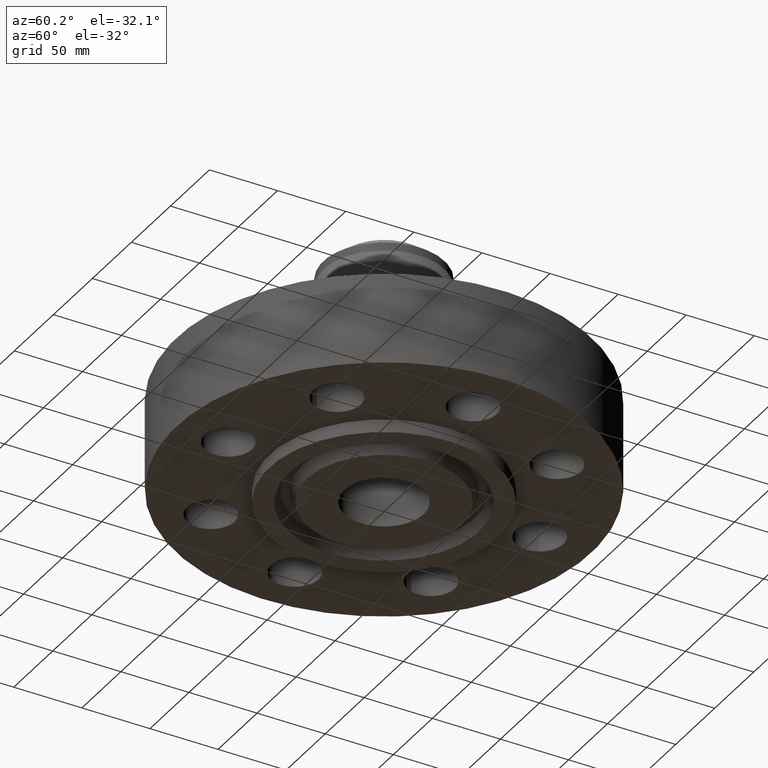
[diagram: clean part render]
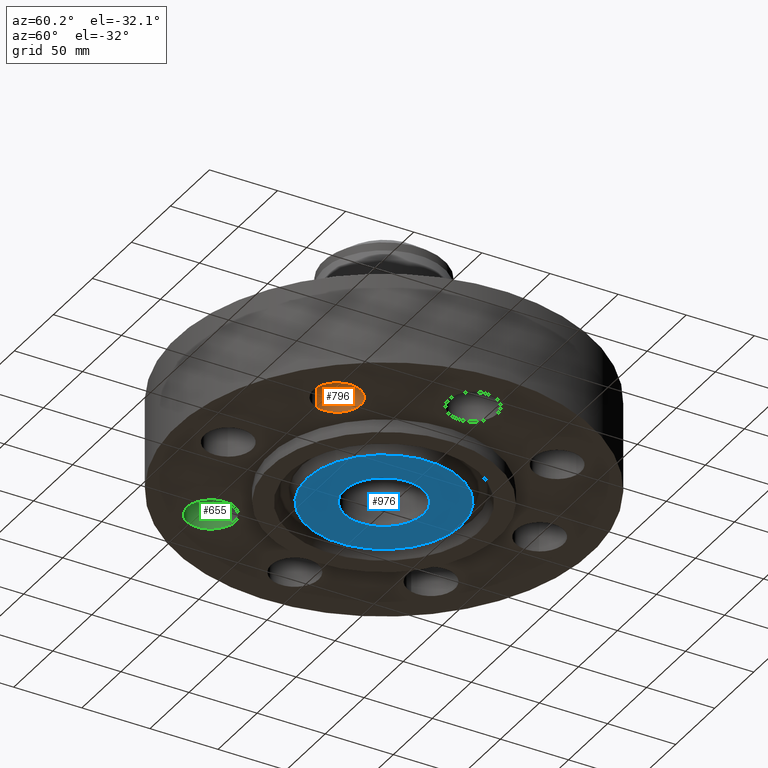
[diagram: same view with three faces highlighted in distinct colors, each labeled with its STEP entity id]
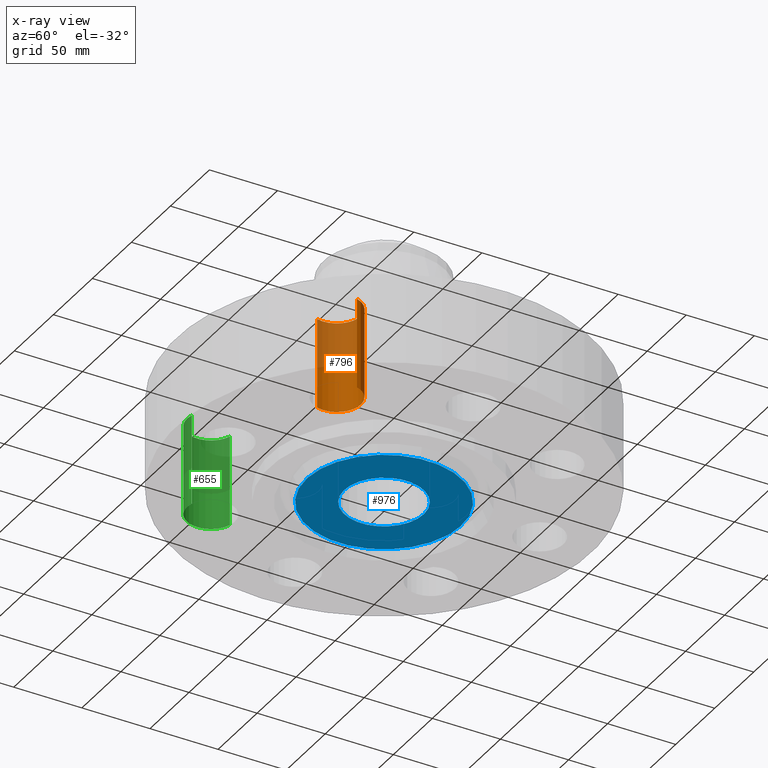
[diagram: x-ray of the same camera — body ghosted, the three highlighted faces saturated]
A machine part, auxiliary view with three faces highlighted in distinct colors.
The next image is the same camera in x-ray (body ghosted, the three faces saturated) — at least one of them is partly hidden behind the body in this view.
Their STEP definitions:

[orange] entity #796 — the highlighted cylindrical surface (edge-blend (fillet) strip) has radius 17.526 mm, axis along (-0, 0, -1).
#545=AXIS2_PLACEMENT_3D('Circle Axis2P3D',#543,#544,$) ;
#757=AXIS2_PLACEMENT_3D('Cylinder Axis2P3D',#754,#755,#756) ;
#787=AXIS2_PLACEMENT_3D('Circle Axis2P3D',#785,#786,$) ;
#538=CARTESIAN_POINT('Vertex',(3.84406976004,-2.98771823886,0.)) ;
#540=CARTESIAN_POINT('Vertex',(2.51989127066,-3.37624279184,0.)) ;
#543=CARTESIAN_POINT('Axis2P3D Location',(3.18198051535,-3.18198051535,0.)) ;
#754=CARTESIAN_POINT('Axis2P3D Location',(3.18198051535,-3.18198051535,2.61606299214)) ;
#759=CARTESIAN_POINT('Line Origine',(3.84406976004,-2.98771823886,1.31000000001)) ;
#763=CARTESIAN_POINT('Vertex',(3.84406976004,-2.98771823886,2.62000000001)) ;
#766=CARTESIAN_POINT('Line Origine',(2.51989127066,-3.37624279184,1.31000000001)) ;
#770=CARTESIAN_POINT('Vertex',(2.51989127066,-3.37624279184,2.62000000001)) ;
#785=CARTESIAN_POINT('Axis2P3D Location',(3.18198051535,-3.18198051535,2.62000000001)) ;
#544=DIRECTION('Axis2P3D Direction',(0.,0.,-0.0393700787402)) ;
#755=DIRECTION('Axis2P3D Direction',(-0.,0.,-0.0393700787402)) ;
#756=DIRECTION('Axis2P3D XDirection',(-0.0377775444876,-0.0110842335096,0.)) ;
#760=DIRECTION('Vector Direction',(0.,0.,-0.0393700787402)) ;
#767=DIRECTION('Vector Direction',(0.,0.,-0.0393700787402)) ;
#786=DIRECTION('Axis2P3D Direction',(-0.,0.,-0.0393700787402)) ;
#761=VECTOR('Line Direction',#760,0.0393700787402) ;
#768=VECTOR('Line Direction',#767,0.0393700787402) ;
#791=ORIENTED_EDGE('',*,*,#772,.F.) ;
#792=ORIENTED_EDGE('',*,*,#547,.T.) ;
#793=ORIENTED_EDGE('',*,*,#765,.T.) ;
#794=ORIENTED_EDGE('',*,*,#789,.F.) ;
#796=ADVANCED_FACE('PartBody',(#795),#758,.F.) ;
#546=CIRCLE('generated circle',#545,0.690000000003) ;
#788=CIRCLE('generated circle',#787,0.690000000003) ;
#758=CYLINDRICAL_SURFACE('generated cylinder',#757,0.690000000003) ;
#547=EDGE_CURVE('',#541,#539,#546,.T.) ;
#765=EDGE_CURVE('',#539,#764,#762,.F.) ;
#772=EDGE_CURVE('',#541,#771,#769,.F.) ;
#789=EDGE_CURVE('',#771,#764,#788,.T.) ;
#790=EDGE_LOOP('',(#791,#792,#793,#794)) ;
#795=FACE_OUTER_BOUND('',#790,.T.) ;
#762=LINE('Line',#759,#761) ;
#769=LINE('Line',#766,#768) ;
#539=VERTEX_POINT('',#538) ;
#541=VERTEX_POINT('',#540) ;
#764=VERTEX_POINT('',#763) ;
#771=VERTEX_POINT('',#770) ;

[blue] entity #976 — the highlighted planar face has unit normal (0, 0, -1).
#363=AXIS2_PLACEMENT_3D('Circle Axis2P3D',#361,#362,$) ;
#387=AXIS2_PLACEMENT_3D('Circle Axis2P3D',#385,#386,$) ;
#929=AXIS2_PLACEMENT_3D('Plane Axis2P3D',#926,#927,#928) ;
#956=AXIS2_PLACEMENT_3D('Circle Axis2P3D',#954,#955,$) ;
#965=AXIS2_PLACEMENT_3D('Circle Axis2P3D',#963,#964,$) ;
#358=CARTESIAN_POINT('Vertex',(0.551339369397,1.00921994618,-0.375000000002)) ;
#361=CARTESIAN_POINT('Axis2P3D Location',(0.,0.,-0.375000000002)) ;
#365=CARTESIAN_POINT('Vertex',(-0.551339369397,-1.00921994618,-0.375000000002)) ;
#385=CARTESIAN_POINT('Axis2P3D Location',(0.,0.,-0.375000000002)) ;
#926=CARTESIAN_POINT('Axis2P3D Location',(0.,1.15,-0.375000000001)) ;
#954=CARTESIAN_POINT('Axis2P3D Location',(-2.79741234551E-016,0.,-0.375000000001)) ;
#958=CARTESIAN_POINT('Vertex',(-1.07127636602,1.96095823455,-0.375000000001)) ;
#960=CARTESIAN_POINT('Vertex',(1.07127636602,-1.96095823455,-0.375000000001)) ;
#963=CARTESIAN_POINT('Axis2P3D Location',(-5.59482469102E-016,1.39870617276E-016,-0.375000000001)) ;
#362=DIRECTION('Axis2P3D Direction',(0.,0.,-0.0393700787402)) ;
#386=DIRECTION('Axis2P3D Direction',(0.,0.,-0.0393700787402)) ;
#927=DIRECTION('Axis2P3D Direction',(0.,0.,-0.0393700787402)) ;
#928=DIRECTION('Axis2P3D XDirection',(0.0393700787402,0.,0.)) ;
#955=DIRECTION('Axis2P3D Direction',(0.,0.,-0.0393700787402)) ;
#964=DIRECTION('Axis2P3D Direction',(0.,0.,-0.0393700787402)) ;
#969=ORIENTED_EDGE('',*,*,#962,.T.) ;
#970=ORIENTED_EDGE('',*,*,#967,.T.) ;
#973=ORIENTED_EDGE('',*,*,#367,.F.) ;
#974=ORIENTED_EDGE('',*,*,#389,.F.) ;
#975=FACE_BOUND('',#972,.T.) ;
#976=ADVANCED_FACE('PartBody',(#971,#975),#930,.T.) ;
#364=CIRCLE('generated circle',#363,1.15) ;
#388=CIRCLE('generated circle',#387,1.15) ;
#957=CIRCLE('generated circle',#956,2.23450000001) ;
#966=CIRCLE('generated circle',#965,2.23450000001) ;
#367=EDGE_CURVE('',#359,#366,#364,.T.) ;
#389=EDGE_CURVE('',#366,#359,#388,.T.) ;
#962=EDGE_CURVE('',#959,#961,#957,.T.) ;
#967=EDGE_CURVE('',#961,#959,#966,.T.) ;
#968=EDGE_LOOP('',(#969,#970)) ;
#972=EDGE_LOOP('',(#973,#974)) ;
#971=FACE_OUTER_BOUND('',#968,.T.) ;
#930=PLANE('',#929) ;
#359=VERTEX_POINT('',#358) ;
#366=VERTEX_POINT('',#365) ;
#959=VERTEX_POINT('',#958) ;
#961=VERTEX_POINT('',#960) ;

[green] entity #655 — the highlighted cylindrical surface (edge-blend (fillet) strip) has radius 17.526 mm, axis along (0, 0, -1).
#572=AXIS2_PLACEMENT_3D('Circle Axis2P3D',#570,#571,$) ;
#628=AXIS2_PLACEMENT_3D('Cylinder Axis2P3D',#625,#626,#627) ;
#646=AXIS2_PLACEMENT_3D('Circle Axis2P3D',#644,#645,$) ;
#570=CARTESIAN_POINT('Axis2P3D Location',(-3.18198051535,-3.18198051535,0.)) ;
#574=CARTESIAN_POINT('Vertex',(-2.98771823886,-3.84406976004,0.)) ;
#576=CARTESIAN_POINT('Vertex',(-3.37624279184,-2.51989127066,0.)) ;
#625=CARTESIAN_POINT('Axis2P3D Location',(-3.18198051535,-3.18198051535,2.61606299214)) ;
#630=CARTESIAN_POINT('Line Origine',(-2.98771823886,-3.84406976004,1.31000000001)) ;
#634=CARTESIAN_POINT('Vertex',(-2.98771823886,-3.84406976004,2.62000000001)) ;
#637=CARTESIAN_POINT('Line Origine',(-3.37624279184,-2.51989127066,1.31000000001)) ;
#641=CARTESIAN_POINT('Vertex',(-3.37624279184,-2.51989127066,2.62000000001)) ;
#644=CARTESIAN_POINT('Axis2P3D Location',(-3.18198051535,-3.18198051535,2.62000000001)) ;
#571=DIRECTION('Axis2P3D Direction',(0.,0.,-0.0393700787402)) ;
#626=DIRECTION('Axis2P3D Direction',(0.,0.,-0.0393700787402)) ;
#627=DIRECTION('Axis2P3D XDirection',(-0.0110842335096,0.0377775444876,0.)) ;
#631=DIRECTION('Vector Direction',(0.,0.,-0.0393700787402)) ;
#638=DIRECTION('Vector Direction',(0.,0.,-0.0393700787402)) ;
#645=DIRECTION('Axis2P3D Direction',(0.,0.,-0.0393700787402)) ;
#632=VECTOR('Line Direction',#631,0.0393700787402) ;
#639=VECTOR('Line Direction',#638,0.0393700787402) ;
#650=ORIENTED_EDGE('',*,*,#636,.F.) ;
#651=ORIENTED_EDGE('',*,*,#578,.T.) ;
#652=ORIENTED_EDGE('',*,*,#643,.T.) ;
#653=ORIENTED_EDGE('',*,*,#648,.F.) ;
#655=ADVANCED_FACE('PartBody',(#654),#629,.F.) ;
#573=CIRCLE('generated circle',#572,0.690000000003) ;
#647=CIRCLE('generated circle',#646,0.690000000003) ;
#629=CYLINDRICAL_SURFACE('generated cylinder',#628,0.690000000003) ;
#578=EDGE_CURVE('',#575,#577,#573,.T.) ;
#636=EDGE_CURVE('',#575,#635,#633,.F.) ;
#643=EDGE_CURVE('',#577,#642,#640,.F.) ;
#648=EDGE_CURVE('',#635,#642,#647,.T.) ;
#649=EDGE_LOOP('',(#650,#651,#652,#653)) ;
#654=FACE_OUTER_BOUND('',#649,.T.) ;
#633=LINE('Line',#630,#632) ;
#640=LINE('Line',#637,#639) ;
#575=VERTEX_POINT('',#574) ;
#577=VERTEX_POINT('',#576) ;
#635=VERTEX_POINT('',#634) ;
#642=VERTEX_POINT('',#641) ;